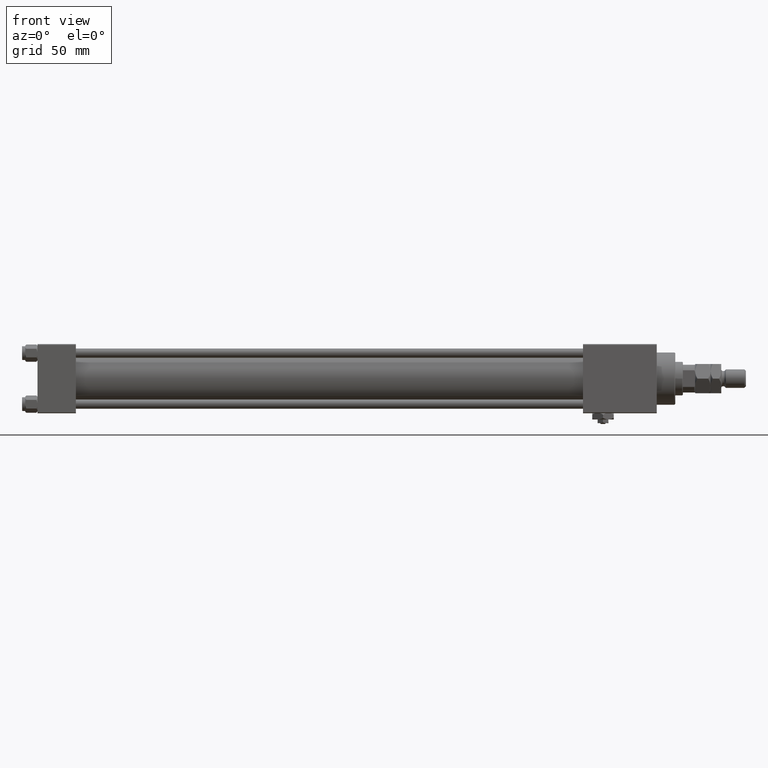
[diagram: clean part render]
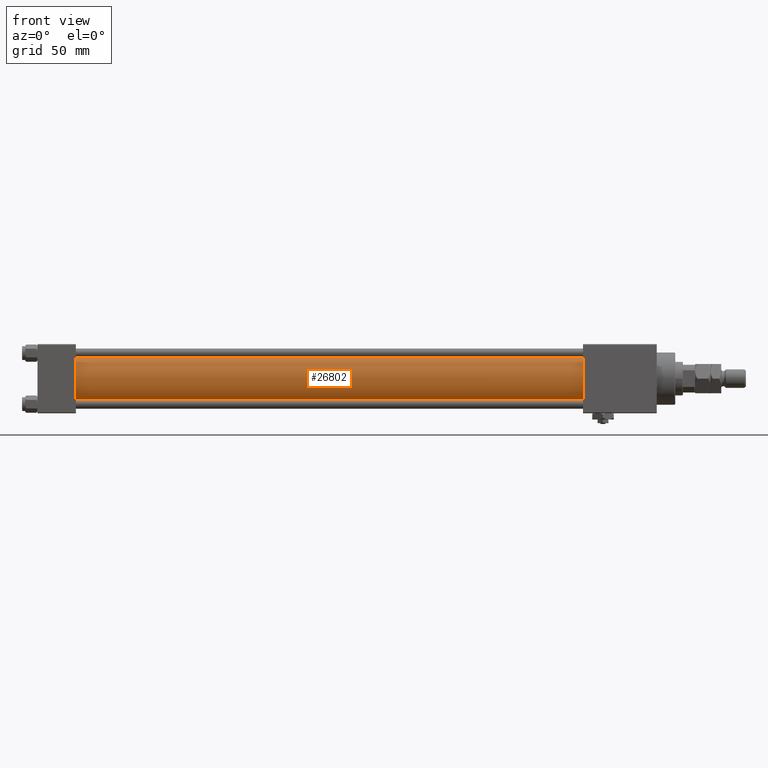
[diagram: same view with one face highlighted and labeled with its STEP entity id]
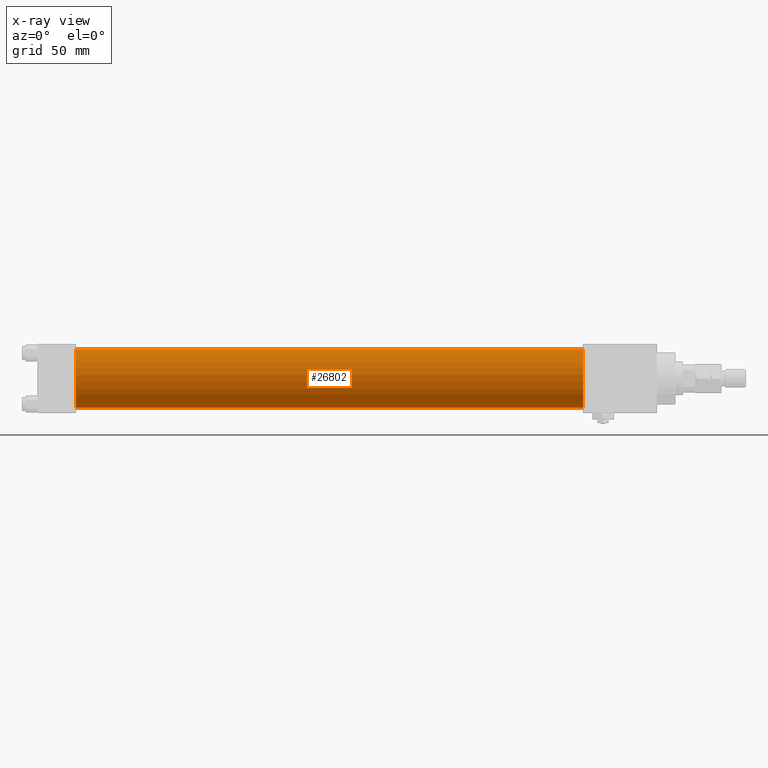
[diagram: x-ray of the same camera — body ghosted, the highlighted face saturated]
A machine part, front view. The second image highlights one B-rep face of the part: STEP entity #26802.
The next image is the same camera in x-ray: the body ghosted, the highlighted face saturated — about 0% of this face is hidden behind the body in this view.
In plain terms, the highlighted cylindrical surface (edge-blend (fillet) strip) has radius 19 mm, axis along (-1, -0, -0).
Its self-contained STEP definition (entity closure, byte-faithful):
#6643 = CYLINDRICAL_SURFACE ( 'NONE', #8176, 19.00000000000000000 ) ;
#6919 = FACE_OUTER_BOUND ( 'NONE', #29759, .T. ) ;
#7450 = EDGE_CURVE ( 'NONE', #39880, #48052, #50818, .T. ) ;
#8176 = AXIS2_PLACEMENT_3D ( 'NONE', #11515, #15296, #23141 ) ;
#8290 = CARTESIAN_POINT ( 'NONE',  ( 355.0000000000000568, -2.602085213965210642E-15, 19.00000000000000000 ) ) ;
#9933 = ORIENTED_EDGE ( 'NONE', *, *, #7450, .F. ) ;
#10349 = LINE ( 'NONE', #10877, #38786 ) ;
#10877 = CARTESIAN_POINT ( 'NONE',  ( 355.0000000000000568, -2.752562955852396712E-16, -19.00000000000000000 ) ) ;
#11515 = CARTESIAN_POINT ( 'NONE',  ( 355.0000000000000568, -2.602085213965210642E-15, 0.000000000000000000 ) ) ;
#12547 = CARTESIAN_POINT ( 'NONE',  ( 355.0000000000000568, -2.602085213965210642E-15, 0.000000000000000000 ) ) ;
#14668 = CARTESIAN_POINT ( 'NONE',  ( 25.00000000000002132, -2.602085213965210642E-15, 0.000000000000000000 ) ) ;
#15296 = DIRECTION ( 'NONE',  ( -1.000000000000000000, -0.000000000000000000, -0.000000000000000000 ) ) ;
#16733 = VERTEX_POINT ( 'NONE', #47637 ) ;
#19253 = DIRECTION ( 'NONE',  ( 1.000000000000000000, -0.000000000000000000, 0.000000000000000000 ) ) ;
#20691 = ORIENTED_EDGE ( 'NONE', *, *, #33632, .T. ) ;
#23141 = DIRECTION ( 'NONE',  ( 0.000000000000000000, 0.000000000000000000, 1.000000000000000000 ) ) ;
#26802 = ADVANCED_FACE ( 'NONE', ( #6919 ), #6643, .T. ) ;
#27498 = AXIS2_PLACEMENT_3D ( 'NONE', #12547, #29016, #37139 ) ;
#29016 = DIRECTION ( 'NONE',  ( 1.000000000000000000, 0.000000000000000000, 0.000000000000000000 ) ) ;
#29759 = EDGE_LOOP ( 'NONE', ( #30341, #9933, #20691, #37554 ) ) ;
#30341 = ORIENTED_EDGE ( 'NONE', *, *, #45410, .F. ) ;
#31128 = DIRECTION ( 'NONE',  ( 0.000000000000000000, 0.000000000000000000, 1.000000000000000000 ) ) ;
#32593 = CARTESIAN_POINT ( 'NONE',  ( 25.00000000000002132, -2.602085213965210642E-15, 19.00000000000000000 ) ) ;
#33632 = EDGE_CURVE ( 'NONE', #39880, #49410, #40216, .T. ) ;
#37139 = DIRECTION ( 'NONE',  ( 0.000000000000000000, 0.000000000000000000, -1.000000000000000000 ) ) ;
#37554 = ORIENTED_EDGE ( 'NONE', *, *, #46879, .T. ) ;
#38786 = VECTOR ( 'NONE', #46818, 1000.000000000000000 ) ;
#39880 = VERTEX_POINT ( 'NONE', #8290 ) ;
#40216 = LINE ( 'NONE', #48600, #46114 ) ;
#42134 = AXIS2_PLACEMENT_3D ( 'NONE', #14668, #19253, #31128 ) ;
#44280 = DIRECTION ( 'NONE',  ( -1.000000000000000000, -0.000000000000000000, -0.000000000000000000 ) ) ;
#44318 = CARTESIAN_POINT ( 'NONE',  ( 355.0000000000000568, -2.752562955852396712E-16, -19.00000000000000000 ) ) ;
#45410 = EDGE_CURVE ( 'NONE', #48052, #16733, #10349, .T. ) ;
#46114 = VECTOR ( 'NONE', #44280, 1000.000000000000000 ) ;
#46818 = DIRECTION ( 'NONE',  ( -1.000000000000000000, -0.000000000000000000, -0.000000000000000000 ) ) ;
#46879 = EDGE_CURVE ( 'NONE', #49410, #16733, #47347, .T. ) ;
#47347 = CIRCLE ( 'NONE', #42134, 19.00000000000000000 ) ;
#47637 = CARTESIAN_POINT ( 'NONE',  ( 25.00000000000002132, -2.752562955852396712E-16, -19.00000000000000000 ) ) ;
#48052 = VERTEX_POINT ( 'NONE', #44318 ) ;
#48600 = CARTESIAN_POINT ( 'NONE',  ( 355.0000000000000568, -2.602085213965210642E-15, 19.00000000000000000 ) ) ;
#49410 = VERTEX_POINT ( 'NONE', #32593 ) ;
#50818 = CIRCLE ( 'NONE', #27498, 19.00000000000000000 ) ;